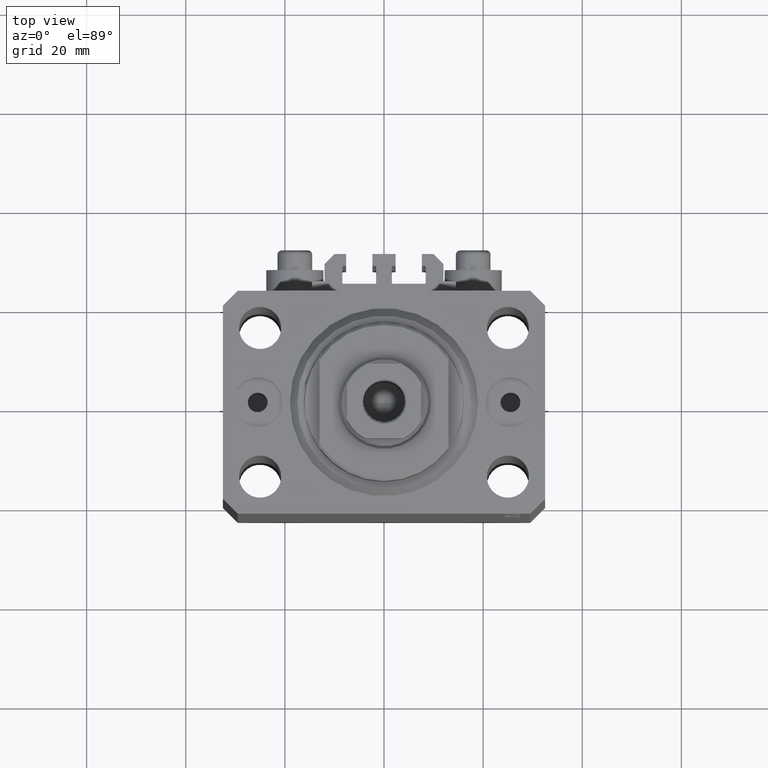
[diagram: clean part render]
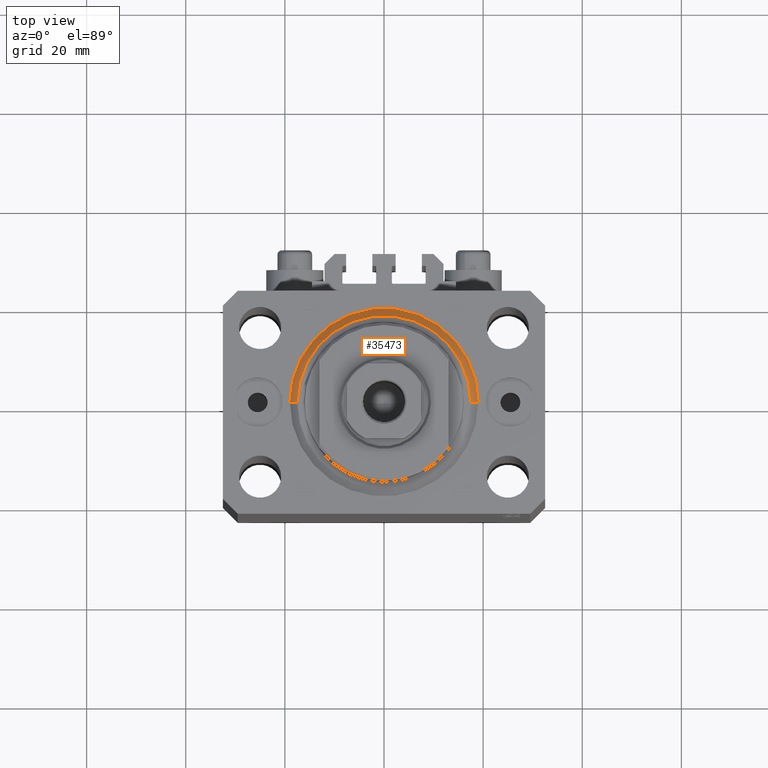
[diagram: same view with one face highlighted and labeled with its STEP entity id]
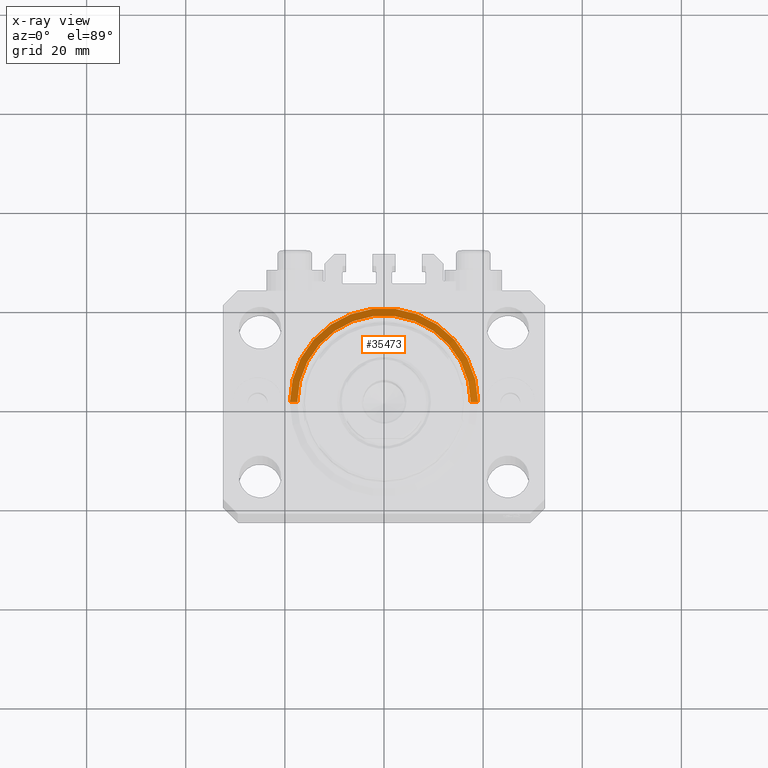
[diagram: x-ray of the same camera — body ghosted, the highlighted face saturated]
A machine part, top view. The second image highlights one B-rep face of the part: STEP entity #35473.
The next image is the same camera in x-ray: the body ghosted, the highlighted face saturated — about 0% of this face is hidden behind the body in this view.
In plain terms, the highlighted conical surface has half-angle 45 deg.
Its self-contained STEP definition (entity closure, byte-faithful):
#2011 = ORIENTED_EDGE ( 'NONE', *, *, #30912, .F. ) ;
#2821 = DIRECTION ( 'NONE',  ( -0.7071067811865483499, 8.659560562354943952E-17, 0.7071067811865467956 ) ) ;
#3667 = AXIS2_PLACEMENT_3D ( 'NONE', #28655, #39910, #43263 ) ;
#4519 = DIRECTION ( 'NONE',  ( -0.000000000000000000, -0.000000000000000000, 1.000000000000000000 ) ) ;
#5605 = CARTESIAN_POINT ( 'NONE',  ( 19.00000000000000000, 0.000000000000000000, 1.500000000000004885 ) ) ;
#6835 = EDGE_LOOP ( 'NONE', ( #29937, #41214, #2011, #15877 ) ) ;
#6844 = DIRECTION ( 'NONE',  ( 1.000000000000000000, 0.000000000000000000, 0.000000000000000000 ) ) ;
#10372 = EDGE_CURVE ( 'NONE', #46816, #19288, #24272, .T. ) ;
#12124 = CIRCLE ( 'NONE', #38814, 17.49999999999999289 ) ;
#12125 = EDGE_CURVE ( 'NONE', #46816, #45986, #12124, .T. ) ;
#13426 = AXIS2_PLACEMENT_3D ( 'NONE', #23074, #4519, #33605 ) ;
#15710 = CARTESIAN_POINT ( 'NONE',  ( -19.00000000000000000, 0.000000000000000000, 1.500000000000004885 ) ) ;
#15781 = EDGE_CURVE ( 'NONE', #45986, #18323, #45241, .T. ) ;
#15871 = DIRECTION ( 'NONE',  ( 0.7071067811865483499, 0.000000000000000000, 0.7071067811865467956 ) ) ;
#15877 = ORIENTED_EDGE ( 'NONE', *, *, #15781, .F. ) ;
#18323 = VERTEX_POINT ( 'NONE', #36756 ) ;
#19288 = VERTEX_POINT ( 'NONE', #15710 ) ;
#21609 = DIRECTION ( 'NONE',  ( -0.000000000000000000, -0.000000000000000000, -1.000000000000000000 ) ) ;
#23074 = CARTESIAN_POINT ( 'NONE',  ( 0.000000000000000000, 0.000000000000000000, 1.500000000000004885 ) ) ;
#24204 = CONICAL_SURFACE ( 'NONE', #3667, 19.00000000000000000, 0.7853981633974492782 ) ;
#24272 = LINE ( 'NONE', #35505, #30355 ) ;
#25081 = FACE_OUTER_BOUND ( 'NONE', #6835, .T. ) ;
#28655 = CARTESIAN_POINT ( 'NONE',  ( 0.000000000000000000, 0.000000000000000000, 1.500000000000004885 ) ) ;
#29937 = ORIENTED_EDGE ( 'NONE', *, *, #12125, .F. ) ;
#30355 = VECTOR ( 'NONE', #2821, 1000.000000000000000 ) ;
#30912 = EDGE_CURVE ( 'NONE', #18323, #19288, #45463, .T. ) ;
#31885 = CARTESIAN_POINT ( 'NONE',  ( 0.000000000000000000, 0.000000000000000000, 0.000000000000000000 ) ) ;
#33605 = DIRECTION ( 'NONE',  ( 1.000000000000000000, 0.000000000000000000, 0.000000000000000000 ) ) ;
#34508 = CARTESIAN_POINT ( 'NONE',  ( -17.49999999999999289, 2.234980408443919215E-15, 0.000000000000000000 ) ) ;
#35473 = ADVANCED_FACE ( 'NONE', ( #25081 ), #24204, .T. ) ;
#35505 = CARTESIAN_POINT ( 'NONE',  ( -19.00000000000000000, 2.326828918379970970E-15, 1.500000000000004885 ) ) ;
#35514 = CARTESIAN_POINT ( 'NONE',  ( 17.49999999999999289, 0.000000000000000000, 0.000000000000000000 ) ) ;
#35835 = VECTOR ( 'NONE', #15871, 1000.000000000000000 ) ;
#36756 = CARTESIAN_POINT ( 'NONE',  ( 19.00000000000000000, 2.326828918379970970E-15, 1.500000000000004885 ) ) ;
#38814 = AXIS2_PLACEMENT_3D ( 'NONE', #31885, #21609, #6844 ) ;
#39910 = DIRECTION ( 'NONE',  ( -0.000000000000000000, -0.000000000000000000, 1.000000000000000000 ) ) ;
#41214 = ORIENTED_EDGE ( 'NONE', *, *, #10372, .T. ) ;
#43263 = DIRECTION ( 'NONE',  ( 1.000000000000000000, 0.000000000000000000, 0.000000000000000000 ) ) ;
#45241 = LINE ( 'NONE', #5605, #35835 ) ;
#45463 = CIRCLE ( 'NONE', #13426, 19.00000000000000000 ) ;
#45986 = VERTEX_POINT ( 'NONE', #35514 ) ;
#46816 = VERTEX_POINT ( 'NONE', #34508 ) ;